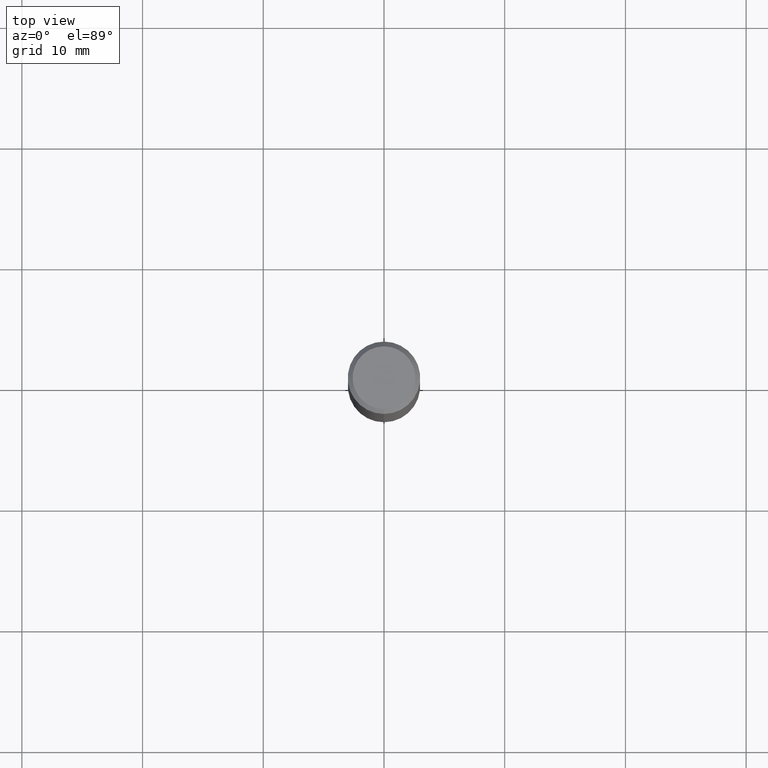
[diagram: clean part render]
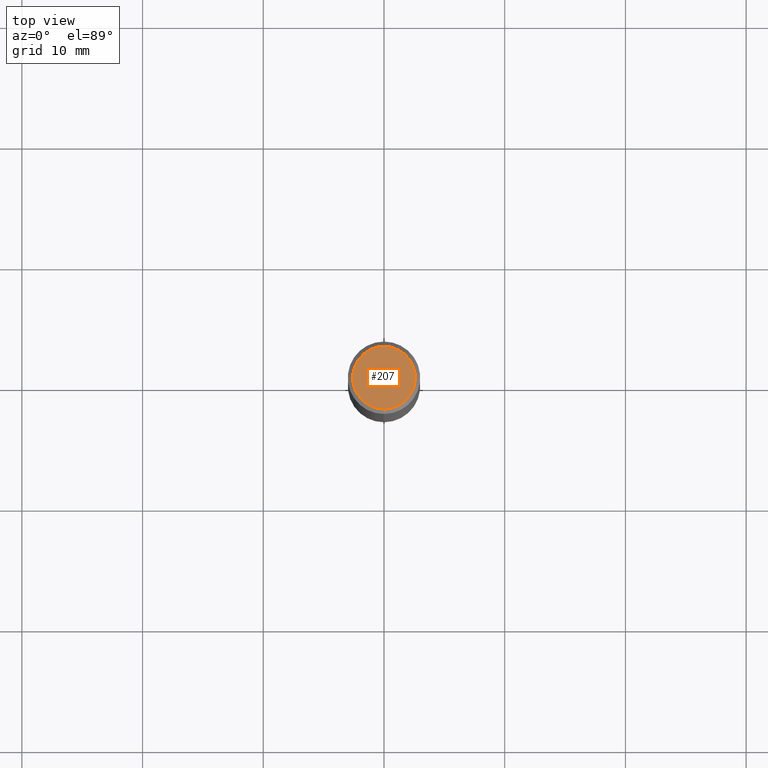
[diagram: same view with one face highlighted and labeled with its STEP entity id]
A machine part, top view. The second image highlights one B-rep face of the part: STEP entity #207.
In plain terms, the highlighted planar face has unit normal (-0, 0, 1).
Its self-contained STEP definition (entity closure, byte-faithful):
#113=EDGE_CURVE('',#157,#159,#284,.T.);
#157=VERTEX_POINT('',#334);
#159=VERTEX_POINT('',#336);
#203=EDGE_CURVE('',#159,#157,#386,.T.);
#207=ADVANCED_FACE('',(#390),#391,.T.);
#284=CIRCLE('',#471,2.6);
#334=CARTESIAN_POINT('',(0.0,2.6,0.0));
#336=CARTESIAN_POINT('',(3.18397651993818E-016,-2.6,0.0));
#386=CIRCLE('',#601,2.6);
#390=FACE_OUTER_BOUND('',#607,.T.);
#391=PLANE('',#608);
#471=AXIS2_PLACEMENT_3D('',#686,#687,#688);
#601=AXIS2_PLACEMENT_3D('',#818,#819,#820);
#607=EDGE_LOOP('',(#823,#824));
#608=AXIS2_PLACEMENT_3D('',#825,#826,#827);
#686=CARTESIAN_POINT('',(0.0,0.0,0.0));
#687=DIRECTION('',(0.0,0.0,-1.0));
#688=DIRECTION('',(0.0,1.0,0.0));
#818=CARTESIAN_POINT('',(0.0,0.0,0.0));
#819=DIRECTION('',(0.0,0.0,-1.0));
#820=DIRECTION('',(0.0,1.0,0.0));
#823=ORIENTED_EDGE('',*,*,#113,.F.);
#824=ORIENTED_EDGE('',*,*,#203,.F.);
#825=CARTESIAN_POINT('',(0.0,1.3,0.0));
#826=DIRECTION('',(-0.0,0.0,1.0));
#827=DIRECTION('',(0.0,-1.0,0.0));